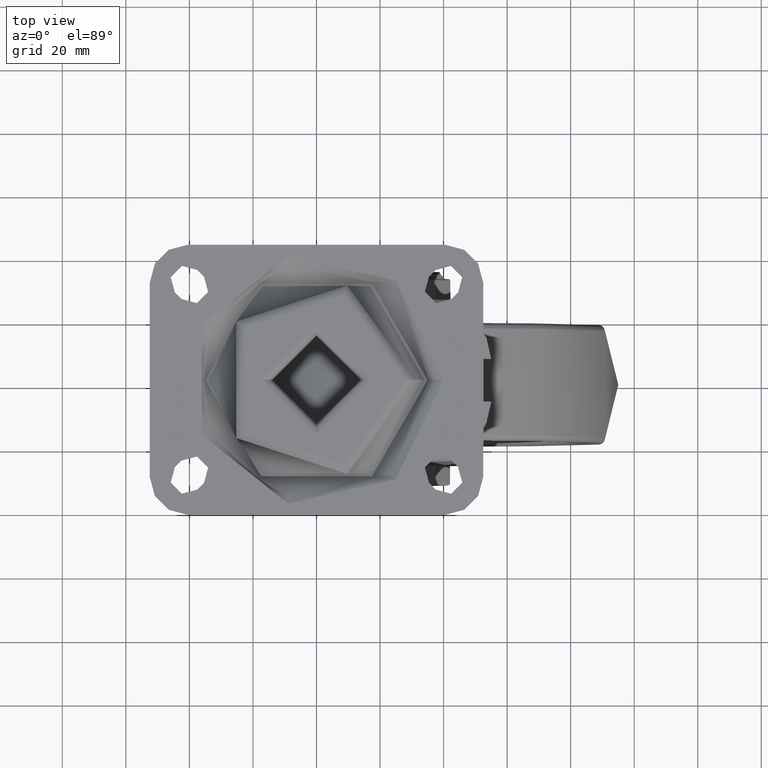
[diagram: clean part render]
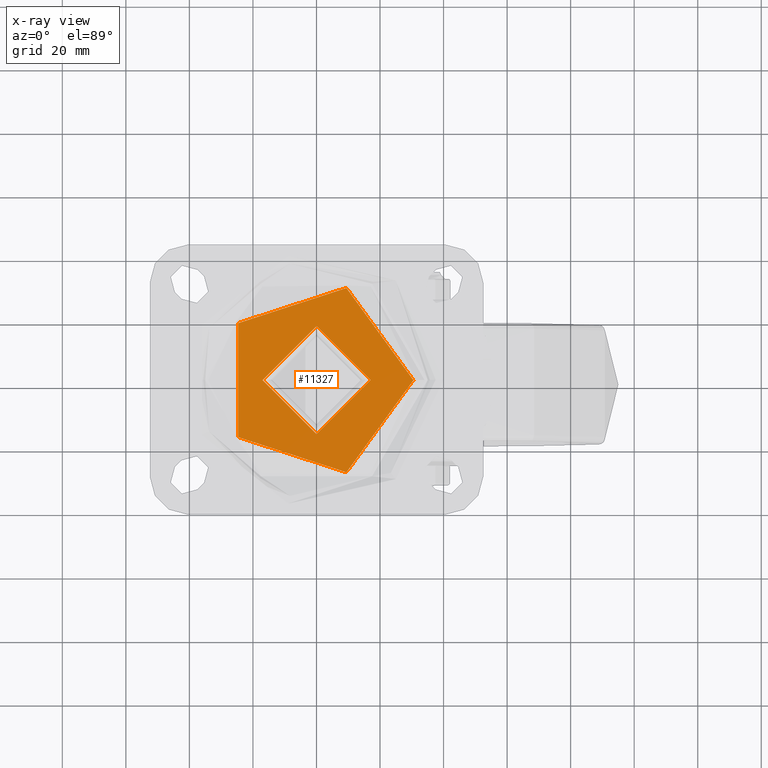
[diagram: x-ray — body ghosted, one internal face saturated and labeled with its STEP entity id]
A machine part, top view, then the same camera in x-ray: the body is ghosted and one INTERNAL B-rep face — a face not visible from any outside direction — is saturated and labeled: STEP entity #11327.
In plain terms, the highlighted planar face has unit normal (-0, 0, 1).
Its self-contained STEP definition (entity closure, byte-faithful):
#979=FACE_BOUND('',#2238,.T.);
#1152=PLANE('',#12268);
#1513=FACE_OUTER_BOUND('',#2237,.T.);
#2237=EDGE_LOOP('',(#8213));
#2238=EDGE_LOOP('',(#8214));
#4510=CIRCLE('',#12242,30.5);
#4512=CIRCLE('',#12246,17.);
#5007=VERTEX_POINT('',#16572);
#5009=VERTEX_POINT('',#16580);
#6187=EDGE_CURVE('',#5007,#5007,#4510,.T.);
#6191=EDGE_CURVE('',#5009,#5009,#4512,.T.);
#8213=ORIENTED_EDGE('',*,*,#6187,.F.);
#8214=ORIENTED_EDGE('',*,*,#6191,.T.);
#11327=ADVANCED_FACE('',(#1513,#979),#1152,.T.);
#12242=AXIS2_PLACEMENT_3D('',#16574,#13494,#13495);
#12246=AXIS2_PLACEMENT_3D('',#16582,#13504,#13505);
#12268=AXIS2_PLACEMENT_3D('',#17070,#13598,#13599);
#13494=DIRECTION('center_axis',(6.19544098563145E-17,-1.43658409572276E-48,
-1.));
#13495=DIRECTION('ref_axis',(1.,1.22464679914735E-16,6.19544098563145E-17));
#13504=DIRECTION('center_axis',(3.37161193117541E-17,-3.08558839309519E-17,
-1.));
#13505=DIRECTION('ref_axis',(-1.,8.71317415451453E-34,-3.37161193117541E-17));
#13598=DIRECTION('center_axis',(-3.37161193117541E-17,3.08558839309519E-17,
1.));
#13599=DIRECTION('ref_axis',(1.,0.,3.37161193117541E-17));
#16572=CARTESIAN_POINT('',(30.5,-3.73517273739943E-15,-7.));
#16574=CARTESIAN_POINT('Origin',(-7.22223729145213E-32,0.,-7.));
#16580=CARTESIAN_POINT('',(17.,-5.55134651050411E-15,-7.00000000000001));
#16582=CARTESIAN_POINT('Origin',(-2.50915359918074E-15,-3.46944695195361E-15,
-7.00000000000001));
#17070=CARTESIAN_POINT('Origin',(-20.591260281974,-22.5,-7.));